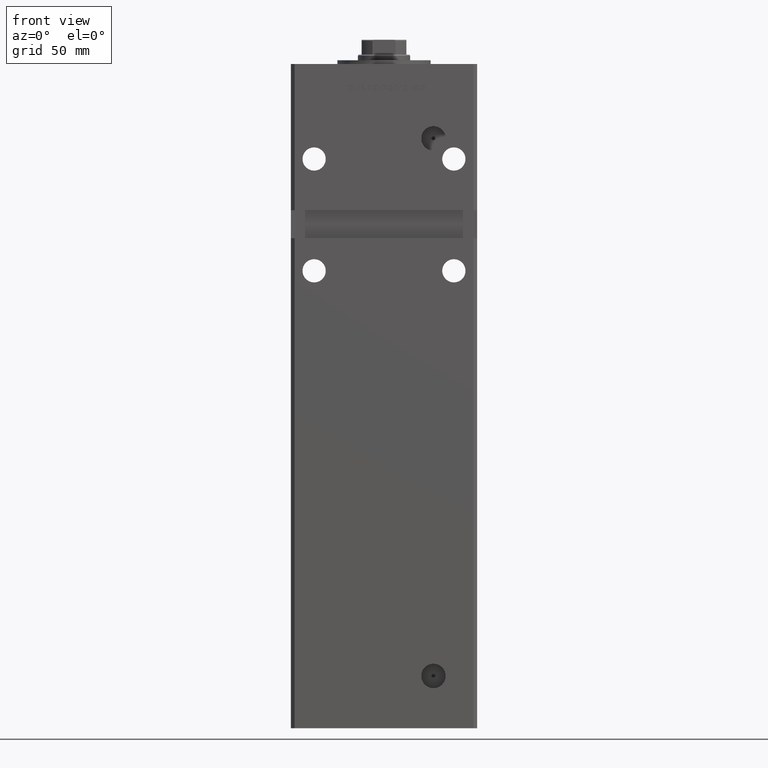
[diagram: clean part render]
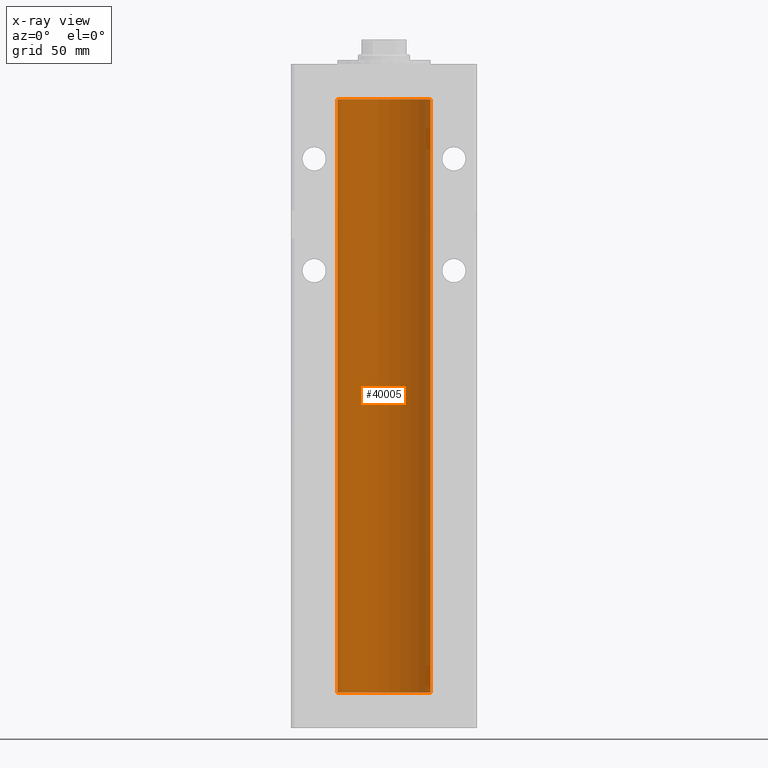
[diagram: x-ray — body ghosted, one internal face saturated and labeled with its STEP entity id]
A machine part, front view, then the same camera in x-ray: the body is ghosted and one INTERNAL B-rep face — a face not visible from any outside direction — is saturated and labeled: STEP entity #40005.
In plain terms, the highlighted cylindrical surface (partial cylindrical patch) has radius 25 mm, axis along (-0, -0, -1).
Its self-contained STEP definition (entity closure, byte-faithful):
#4179 = CARTESIAN_POINT ( 'NONE',  ( -25.00000000000000000, 0.000000000000000000, 0.000000000000000000 ) ) ;
#4729 = CARTESIAN_POINT ( 'NONE',  ( -25.00000000000000000, 0.000000000000000000, 318.5000000000000000 ) ) ;
#7267 = VERTEX_POINT ( 'NONE', #21373 ) ;
#7959 = CARTESIAN_POINT ( 'NONE',  ( 25.00000000000000000, 3.061616997868383043E-15, 318.5000000000000000 ) ) ;
#8263 = DIRECTION ( 'NONE',  ( -0.000000000000000000, 0.000000000000000000, 1.000000000000000000 ) ) ;
#11656 = DIRECTION ( 'NONE',  ( -0.000000000000000000, -0.000000000000000000, -1.000000000000000000 ) ) ;
#12172 = CARTESIAN_POINT ( 'NONE',  ( -25.00000000000000000, 0.000000000000000000, 318.5000000000000000 ) ) ;
#14307 = VECTOR ( 'NONE', #32623, 1000.000000000000000 ) ;
#16399 = DIRECTION ( 'NONE',  ( 1.000000000000000000, 0.000000000000000000, 0.000000000000000000 ) ) ;
#16526 = DIRECTION ( 'NONE',  ( -0.000000000000000000, -0.000000000000000000, -1.000000000000000000 ) ) ;
#17766 = ORIENTED_EDGE ( 'NONE', *, *, #33938, .F. ) ;
#18031 = CARTESIAN_POINT ( 'NONE',  ( 25.00000000000000000, 3.061616997868383043E-15, 318.5000000000000000 ) ) ;
#18584 = EDGE_CURVE ( 'NONE', #41115, #7267, #20846, .T. ) ;
#20082 = EDGE_CURVE ( 'NONE', #41115, #38299, #51113, .T. ) ;
#20846 = LINE ( 'NONE', #7959, #30479 ) ;
#21373 = CARTESIAN_POINT ( 'NONE',  ( 25.00000000000000000, 3.061616997868383043E-15, 0.000000000000000000 ) ) ;
#24200 = ORIENTED_EDGE ( 'NONE', *, *, #20082, .T. ) ;
#24219 = EDGE_CURVE ( 'NONE', #38299, #51298, #53037, .T. ) ;
#28252 = CARTESIAN_POINT ( 'NONE',  ( 0.000000000000000000, 0.000000000000000000, 318.5000000000000000 ) ) ;
#30479 = VECTOR ( 'NONE', #16526, 1000.000000000000000 ) ;
#30498 = DIRECTION ( 'NONE',  ( 1.000000000000000000, 0.000000000000000000, 0.000000000000000000 ) ) ;
#32209 = AXIS2_PLACEMENT_3D ( 'NONE', #38295, #8263, #30498 ) ;
#32293 = DIRECTION ( 'NONE',  ( -0.000000000000000000, 0.000000000000000000, 1.000000000000000000 ) ) ;
#32512 = ORIENTED_EDGE ( 'NONE', *, *, #18584, .F. ) ;
#32623 = DIRECTION ( 'NONE',  ( -0.000000000000000000, -0.000000000000000000, -1.000000000000000000 ) ) ;
#33159 = FACE_OUTER_BOUND ( 'NONE', #49305, .T. ) ;
#33425 = CARTESIAN_POINT ( 'NONE',  ( 0.000000000000000000, 0.000000000000000000, 318.5000000000000000 ) ) ;
#33938 = EDGE_CURVE ( 'NONE', #7267, #51298, #39920, .T. ) ;
#36911 = CYLINDRICAL_SURFACE ( 'NONE', #47851, 25.00000000000000000 ) ;
#38295 = CARTESIAN_POINT ( 'NONE',  ( 0.000000000000000000, 0.000000000000000000, 0.000000000000000000 ) ) ;
#38299 = VERTEX_POINT ( 'NONE', #4729 ) ;
#39920 = CIRCLE ( 'NONE', #32209, 25.00000000000000000 ) ;
#40005 = ADVANCED_FACE ( 'NONE', ( #33159 ), #36911, .F. ) ;
#41115 = VERTEX_POINT ( 'NONE', #18031 ) ;
#46229 = ORIENTED_EDGE ( 'NONE', *, *, #24219, .T. ) ;
#47851 = AXIS2_PLACEMENT_3D ( 'NONE', #33425, #11656, #49547 ) ;
#49305 = EDGE_LOOP ( 'NONE', ( #32512, #24200, #46229, #17766 ) ) ;
#49547 = DIRECTION ( 'NONE',  ( -1.000000000000000000, 0.000000000000000000, 0.000000000000000000 ) ) ;
#50236 = AXIS2_PLACEMENT_3D ( 'NONE', #28252, #32293, #16399 ) ;
#51113 = CIRCLE ( 'NONE', #50236, 25.00000000000000000 ) ;
#51298 = VERTEX_POINT ( 'NONE', #4179 ) ;
#53037 = LINE ( 'NONE', #12172, #14307 ) ;